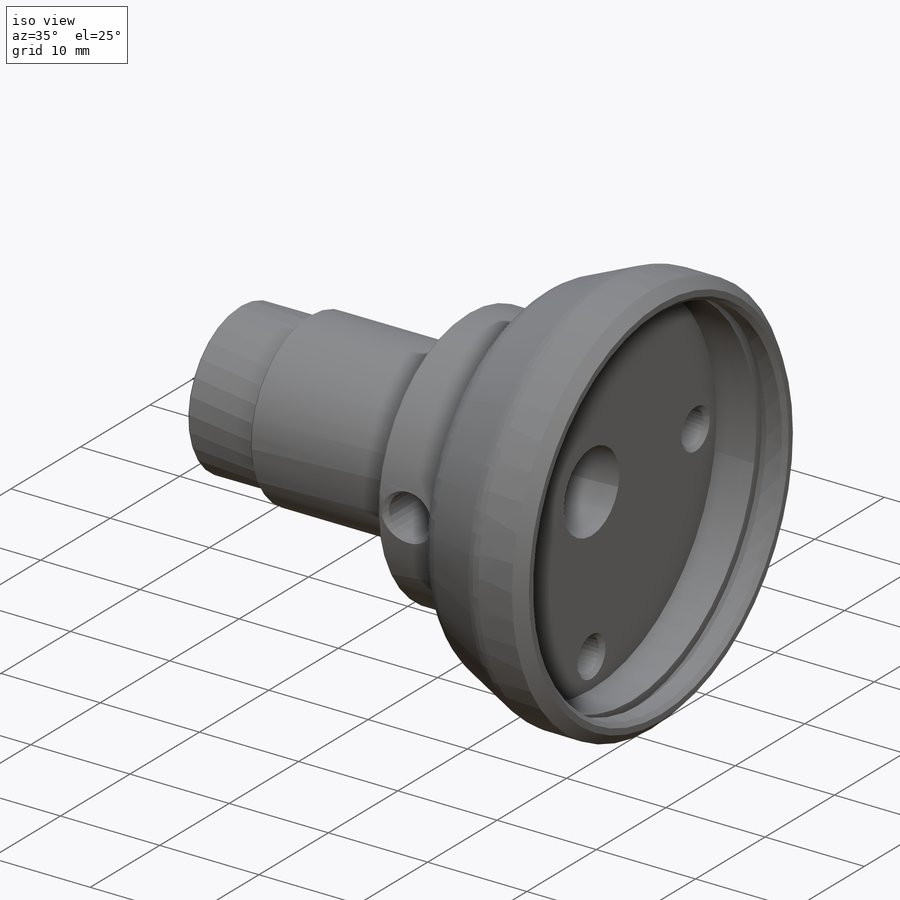
[diagram: iso view]
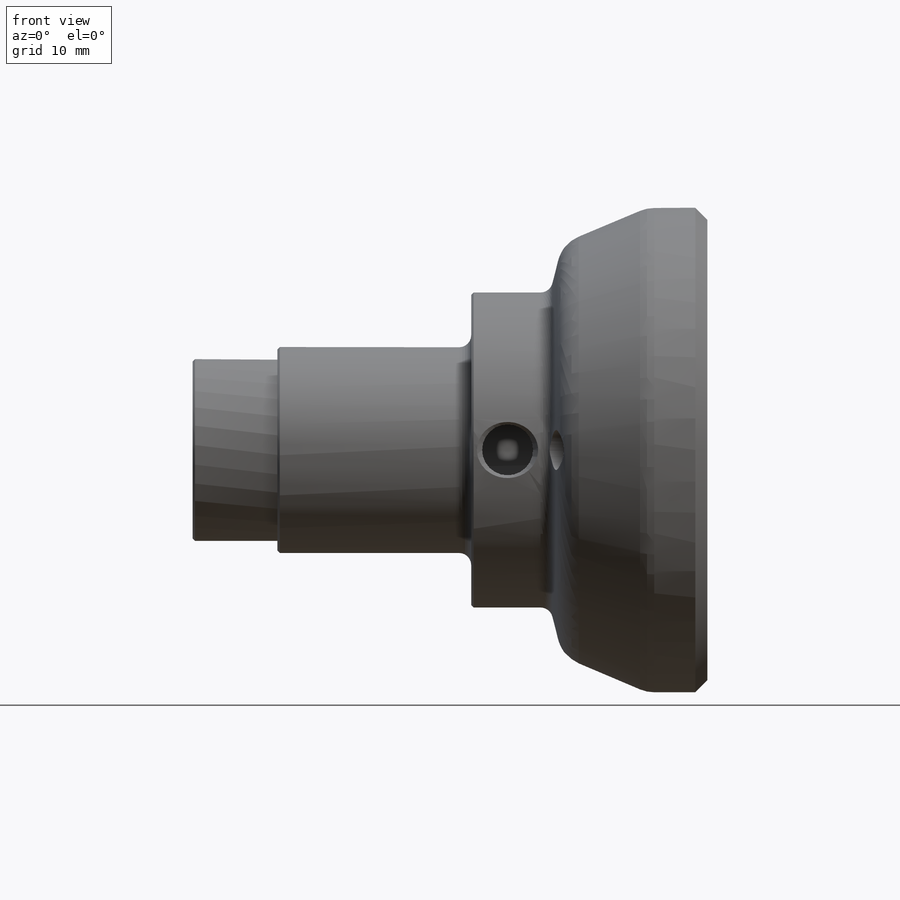
[diagram: front view]
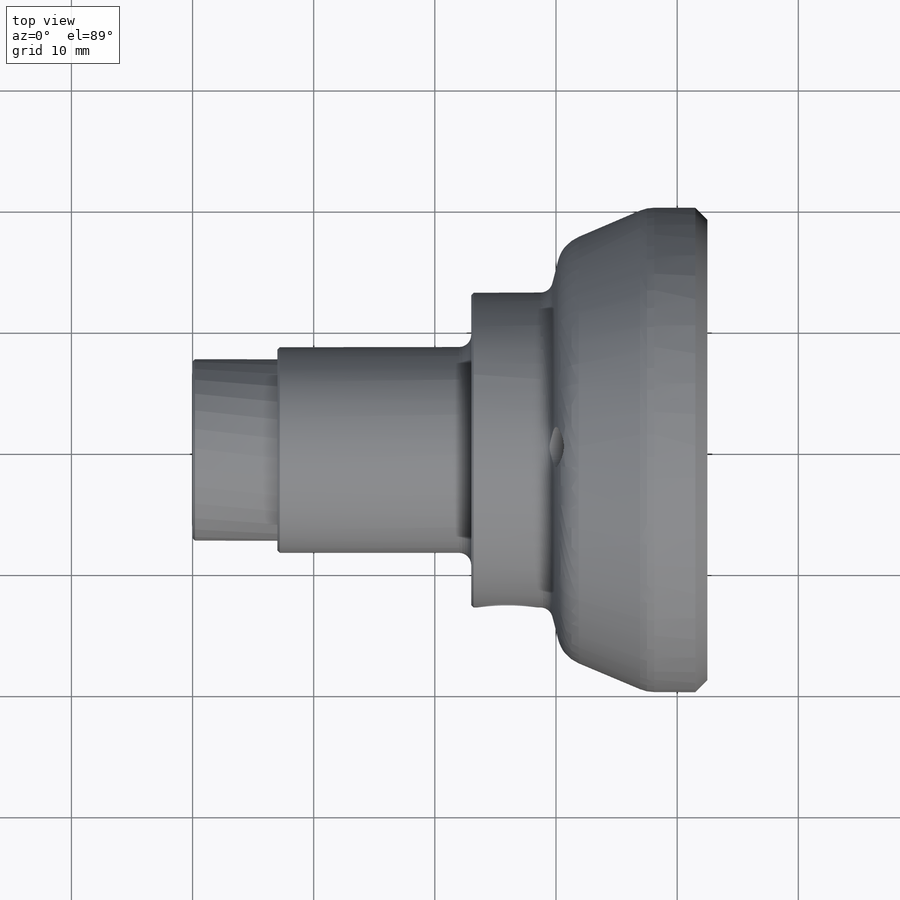
[diagram: top view]
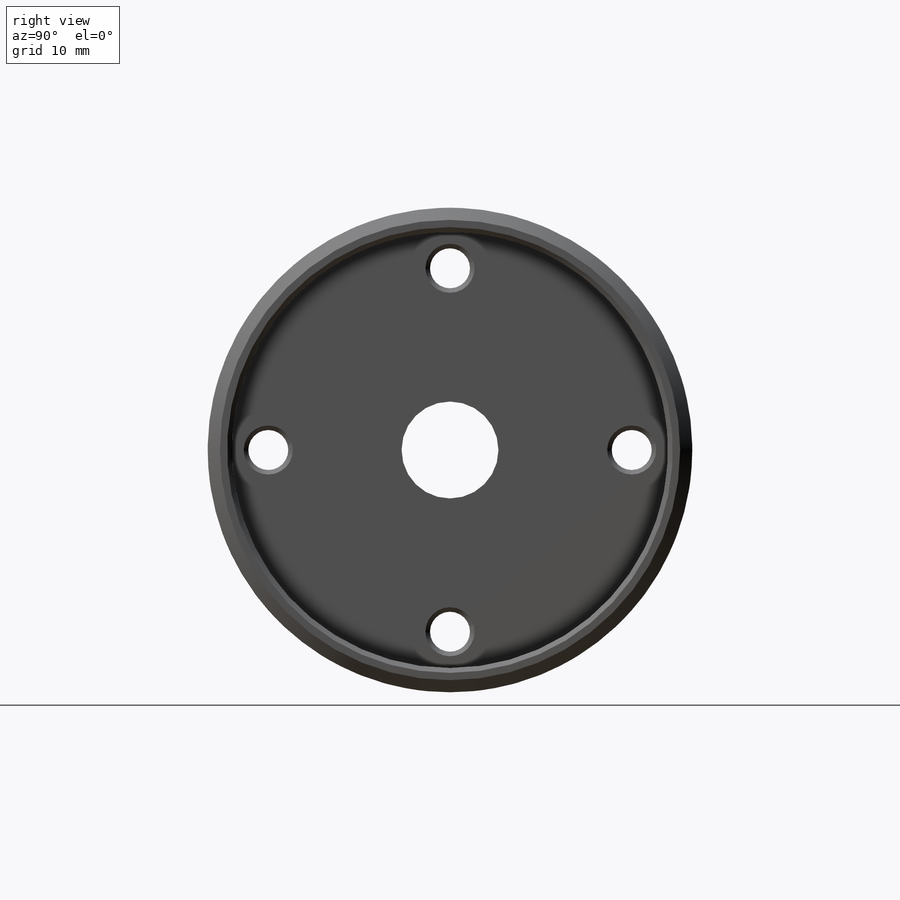
[diagram: right view]
SOLIDWORKS PART (.sldprt)
format: sldprt  version: not decoded by parser v0  size: 510,464 bytes
history: native  units: mm
features: sketch x7, plane x4, chamfer x2, fillet x2, hole x2, material x1, revolve x1 (+8 scaffold rows collapsed)
feature tree (27):
  scaffold x8  (default folders/planes/origin — collapsed)
  material  "7075-T6 (SN)"
  plane  "Ebene vorne"
  plane  "Ebene oben"
  plane  "Ebene rechts"
  sketch  "Skizze1"  dims[c1.D23=3.0mm c1.D5=1.0mm c1.D13=1.0mm c1.D14=3.0mm c1.D1=2.5mm c1.D2=7.0mm c1.D3=4.0mm c1.D4=13.5mm c2.D5=12.0mm c2.D6=1.0mm c2.D7=24.5mm c2.D8=35.5mm c2.D9=6.0mm c2.D10=4.0mm c2.D11=5.0mm c2.D12=6.0mm c2.D13=12.0mm c2.D14=7.5mm c2.D15=8.5mm c2.D16=5.0mm c2.D17=30.5mm c2.D18=22.5mm c3.D10=7.0mm c3.D11=3.0mm c3.D17=2.0mm c3.D18=1.0mm c3.D19=0.8mm c3.D20=2.0mm c4.D11=18.0mm c4.D21=2.0mm c5.D21=23.0deg c5.D22=5.0mm c5.D24=2.0mm c5.D25=2.5mm c5.D26=0.8mm c5.D27=2.5mm c5.D28=2.5mm c5.D29=0.8mm c6.D28=2.5mm c6.D7=2.5mm c6.D24=2.5mm c6.D25=2.5mm c6.D26=2.0mm c6.D27=2.5mm c7.D28=0.4mm c7.D3=18.0mm c7.D4=~3.897896mm c8.D4=23.0deg c8.D7=4.0mm c8.D11=8.5mm c8.D6=4.0mm c8.D12=7.5mm c8.D5=4.0mm c8.D9=23.0mm c8.D13=6.0mm c9.D5=13.0mm c9.D7=12.0mm c9.D14=20.0mm c9.D15=20.0mm c10.D14=40.0mm c10.D16=9.0mm c10.D26=42.5mm c10.D27=0.0mm c11.D14=0.0mm c11.D12=7.5mm c12.D14=0.0mm c12.D15=0.0mm]
  revolve  "Rotation1"  Angle=360deg
  chamfer  "Fase6"  Distance=1mm Angle=45deg
  chamfer  "Fase7"  Distance=0.4mm Angle=45deg
  fillet  "Verrundung1"  Radius=3mm
  fillet  "Verrundung2"  Radius=1mm
  sketch  "Skizze2"  dims[D1=30.0mm]
  hole  "M4 Gewindebohrung1"  Diameter=3.3mm Depth=11.5mm
  sketch  "3D-Skizze1"
  sketch  "Skizze3"  dims[hole-wizard template sketch: 39 standard entries collapsed; hole parameters kept: c13.Bohrerdurchmesser=3.3mm c13.Bohrungstiefe=11.5mm c13.Senkdurchmesser (Oben)=4.05mm c13.D4=~33.297463mm c13.Senkwinkel (Oben)=90.0deg c14.D5=~14.816244mm c14.Spitzenwinkel=118.0deg]
  plane  "Ebene3"  Offset=13mm
  sketch  "Skizze29"  dims[D1=3.0mm]
  hole  "M5 Gewindebohrung2"  Diameter=4.2mm Depth=14mm
  sketch  "Skizze31"
  sketch  "Skizze30"  dims[hole-wizard template sketch: 39 standard entries collapsed; hole parameters kept: c13.Bohrerdurchmesser=4.2mm c13.Bohrungstiefe=14.0mm c13.Senkdurchmesser (Oben)=5.05mm c13.D4=~33.297463mm c13.Senkwinkel (Oben)=90.0deg c14.D5=~14.816244mm c14.Spitzenwinkel=118.0deg]
decode coverage: 12 of 14 modeling features carry decoded parameters
note: ~ marks probable driven/reference dimensions
note: suppression state not decoded; provenance and decode notes live in map.json
